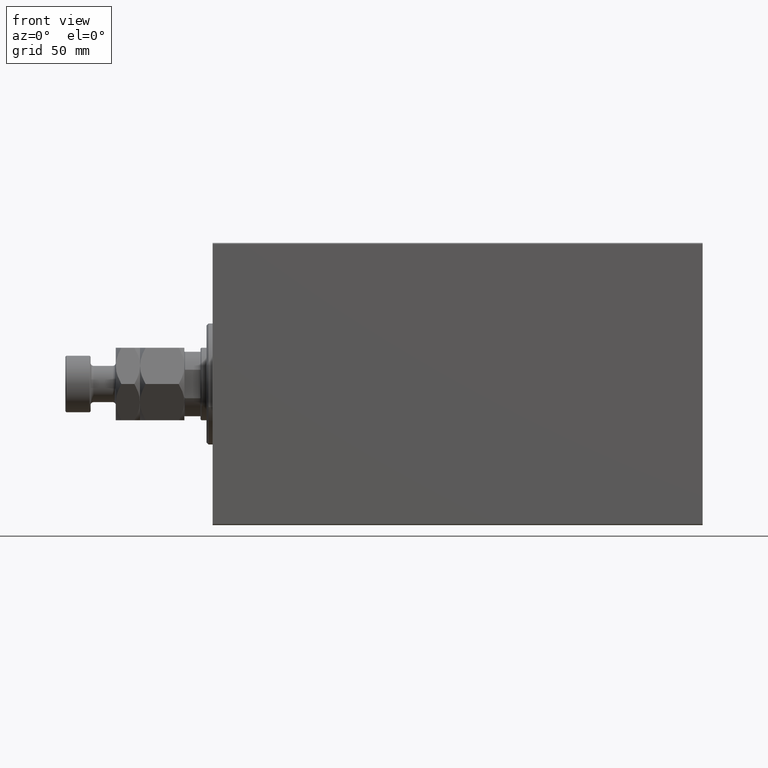
[diagram: clean part render]
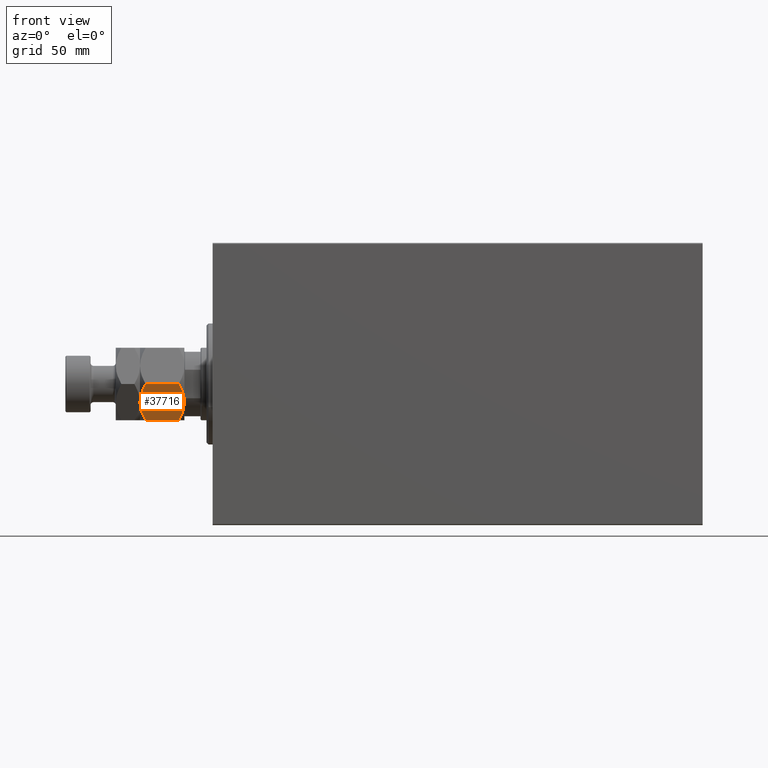
[diagram: same view with one face highlighted and labeled with its STEP entity id]
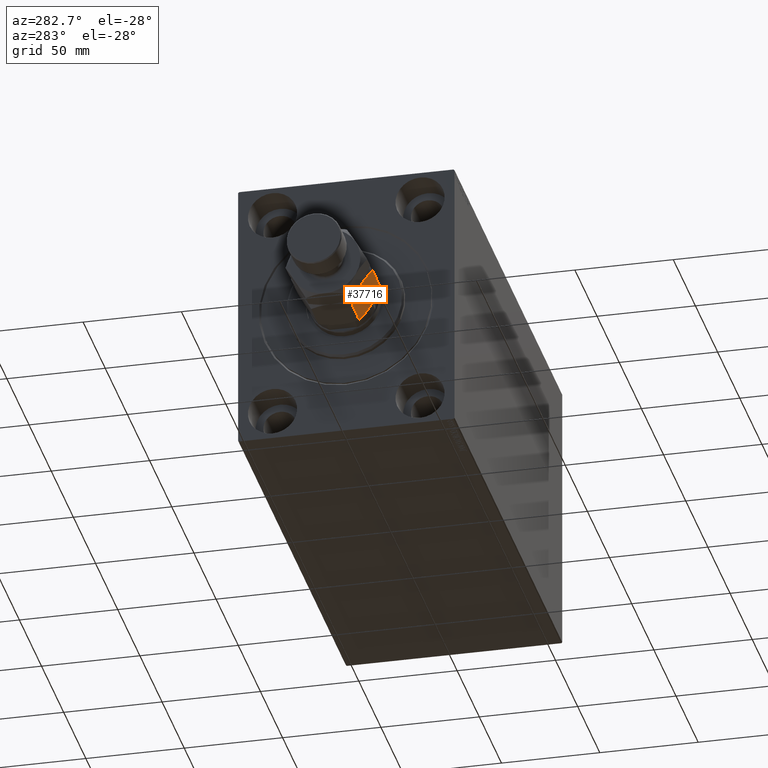
[diagram: same view with one face highlighted and labeled with its STEP entity id]
A machine part, front view. The second image highlights one B-rep face of the part: STEP entity #37716.
A second angle (auxiliary view) of the same face is appended — the face is thin or edge-on in the first view.
In plain terms, the highlighted planar face has unit normal (0, 0.866, 0.5).
Its self-contained STEP definition (entity closure, byte-faithful):
#805 = CARTESIAN_POINT ( 'NONE',  ( -8.673617379884035472E-16, -20.78460969082652454, 22.00000000000000000 ) ) ;
#1400 = ORIENTED_EDGE ( 'NONE', *, *, #30649, .F. ) ;
#2724 = CARTESIAN_POINT ( 'NONE',  ( -18.00000000000000000, -10.39230484541326582, 19.21539030917347901 ) ) ;
#2885 = B_SPLINE_CURVE_WITH_KNOTS ( 'NONE', 3,
 ( #13561, #24143, #24812, #21375, #17465, #45095 ),
 .UNSPECIFIED., .F., .F.,
 ( 4, 2, 4 ),
 ( 0.01077282027732747068, 0.01612137750481873466, 0.02146993473230999691 ),
 .UNSPECIFIED. ) ;
#2952 = CARTESIAN_POINT ( 'NONE',  ( -10.58425150785354241, -14.67378923359658316, 21.91305310988184374 ) ) ;
#3175 = EDGE_CURVE ( 'NONE', #4869, #11038, #2885, .T. ) ;
#4116 = CARTESIAN_POINT ( 'NONE',  ( -8.999999999999996447, -15.58845726811989607, 0.000000000000000000 ) ) ;
#4309 = DIRECTION ( 'NONE',  ( 0.4999999999999998335, 0.8660254037844387076, -0.000000000000000000 ) ) ;
#4869 = VERTEX_POINT ( 'NONE', #5469 ) ;
#5469 = CARTESIAN_POINT ( 'NONE',  ( -8.999999999999994671, -15.58845726811989252, 22.00000000000000000 ) ) ;
#7005 = B_SPLINE_CURVE_WITH_KNOTS ( 'NONE', 3,
 ( #4116, #32209, #25291, #39793, #43033, #36349 ),
 .UNSPECIFIED., .F., .F.,
 ( 4, 2, 4 ),
 ( 0.01077282027732746374, 0.01612137750481872772, 0.02146993473230999344 ),
 .UNSPECIFIED. ) ;
#7507 = ORIENTED_EDGE ( 'NONE', *, *, #14554, .F. ) ;
#8459 = EDGE_CURVE ( 'NONE', #21772, #27399, #7005, .T. ) ;
#9078 = AXIS2_PLACEMENT_3D ( 'NONE', #31720, #4309, #14222 ) ;
#10437 = CARTESIAN_POINT ( 'NONE',  ( -18.00000000000000000, -10.39230484541326582, 19.21539030917347901 ) ) ;
#10667 = CARTESIAN_POINT ( 'NONE',  ( -8.999999999999996447, -15.58845726811989607, 0.000000000000000000 ) ) ;
#11038 = VERTEX_POINT ( 'NONE', #43177 ) ;
#11270 = VERTEX_POINT ( 'NONE', #10437 ) ;
#13561 = CARTESIAN_POINT ( 'NONE',  ( -8.999999999999994671, -15.58845726811989252, 22.00000000000000000 ) ) ;
#14222 = DIRECTION ( 'NONE',  ( -0.8660254037844387076, 0.4999999999999998335, 0.000000000000000000 ) ) ;
#14554 = EDGE_CURVE ( 'NONE', #11270, #4869, #33546, .T. ) ;
#14726 = ORIENTED_EDGE ( 'NONE', *, *, #40458, .T. ) ;
#17013 = CARTESIAN_POINT ( 'NONE',  ( -12.14199022028319774, -13.77442836864821984, 21.65943689774472602 ) ) ;
#17465 = CARTESIAN_POINT ( 'NONE',  ( -1.409696000463988463, -19.97072132548310108, 20.02927867451694510 ) ) ;
#17676 = PLANE ( 'NONE',  #9078 ) ;
#20056 = ORIENTED_EDGE ( 'NONE', *, *, #8459, .F. ) ;
#20221 = CARTESIAN_POINT ( 'NONE',  ( -8.209538469370123437, -16.04483044561309768, 0.01733285647409000055 ) ) ;
#20894 = CARTESIAN_POINT ( 'NONE',  ( -7.415748492146452264, -16.50312530264320898, 0.08694689011815484592 ) ) ;
#21149 = CARTESIAN_POINT ( 'NONE',  ( -8.999999999999994671, -15.58845726811989252, 22.00000000000000000 ) ) ;
#21375 = CARTESIAN_POINT ( 'NONE',  ( -2.860715810337963294, -19.13297464765287614, 20.72742529849575277 ) ) ;
#21772 = VERTEX_POINT ( 'NONE', #10667 ) ;
#23086 = VECTOR ( 'NONE', #39490, 1000.000000000000000 ) ;
#23211 = EDGE_LOOP ( 'NONE', ( #1400, #24558, #31873, #7507, #14726, #20056 ) ) ;
#23888 = CARTESIAN_POINT ( 'NONE',  ( -8.999999999999996447, -15.58845726811989607, 0.000000000000000000 ) ) ;
#24115 = CARTESIAN_POINT ( 'NONE',  ( -7.023280245922045140, -16.72971695024925509, 0.1387225990985768986 ) ) ;
#24143 = CARTESIAN_POINT ( 'NONE',  ( -7.434539168300457135, -16.49227650070744033, 22.00000000000000000 ) ) ;
#24558 = ORIENTED_EDGE ( 'NONE', *, *, #38881, .F. ) ;
#24601 = CARTESIAN_POINT ( 'NONE',  ( -18.00000000000000000, -10.39230484541326582, 22.00000000000000000 ) ) ;
#24812 = CARTESIAN_POINT ( 'NONE',  ( -5.895697476400521886, -17.38072716576608912, 21.72360409287842131 ) ) ;
#25291 = CARTESIAN_POINT ( 'NONE',  ( -12.10430252359947723, -13.79618737047370303, 0.2763959071215840724 ) ) ;
#25910 = B_SPLINE_CURVE_WITH_KNOTS ( 'NONE', 3,
 ( #30800, #34479, #45291, #41611, #41381, #24115, #20894, #20221, #44831, #23888 ),
 .UNSPECIFIED., .F., .F.,
 ( 4, 2, 2, 2, 4 ),
 ( 2.544307986815391393E-07, 0.005386537354063073400, 0.008079678815695269870, 0.009426249546511366803, 0.01077282027732746374 ),
 .UNSPECIFIED. ) ;
#27399 = VERTEX_POINT ( 'NONE', #35479 ) ;
#27566 = CARTESIAN_POINT ( 'NONE',  ( -5.711424626294094742E-16, -20.78460969082652454, 2.784609690826514772 ) ) ;
#27594 = CARTESIAN_POINT ( 'NONE',  ( -12.90267270303527525, -13.33524813246347129, 21.46291444417098049 ) ) ;
#30649 = EDGE_CURVE ( 'NONE', #42648, #21772, #25910, .T. ) ;
#30800 = CARTESIAN_POINT ( 'NONE',  ( -5.711424626294094742E-16, -20.78460969082652454, 2.784609690826514772 ) ) ;
#31514 = CARTESIAN_POINT ( 'NONE',  ( -16.58866960374795241, -11.20713682960488633, 20.03022229336509596 ) ) ;
#31720 = CARTESIAN_POINT ( 'NONE',  ( -18.00000000000000000, -10.39230484541326582, 22.00000000000000000 ) ) ;
#31873 = ORIENTED_EDGE ( 'NONE', *, *, #3175, .F. ) ;
#32209 = CARTESIAN_POINT ( 'NONE',  ( -10.56546083169953576, -14.68463803553235181, 8.233160247311796338E-16 ) ) ;
#32362 = LINE ( 'NONE', #805, #23086 ) ;
#33546 = B_SPLINE_CURVE_WITH_KNOTS ( 'NONE', 3,
 ( #2724, #31514, #35186, #27594, #17013, #38861, #2952, #38182, #34733, #21149 ),
 .UNSPECIFIED., .F., .F.,
 ( 4, 2, 2, 2, 4 ),
 ( 2.544307986796311447E-07, 0.005386537354063076002, 0.008079678815695275074, 0.009426249546511373742, 0.01077282027732747068 ),
 .UNSPECIFIED. ) ;
#34479 = CARTESIAN_POINT ( 'NONE',  ( -1.411330396252045816, -19.96977770663490759, 1.969777706634897152 ) ) ;
#34733 = CARTESIAN_POINT ( 'NONE',  ( -9.394125676616230436, -15.36090870263097230, 22.00000000000000000 ) ) ;
#35186 = CARTESIAN_POINT ( 'NONE',  ( -15.14539811114618573, -12.04041001437222569, 20.72261692211012729 ) ) ;
#35479 = CARTESIAN_POINT ( 'NONE',  ( -18.00000000000000000, -10.39230484541326582, 2.784609690826517436 ) ) ;
#36349 = CARTESIAN_POINT ( 'NONE',  ( -18.00000000000000000, -10.39230484541326582, 2.784609690826517436 ) ) ;
#37716 = ADVANCED_FACE ( 'NONE', ( #39313 ), #17676, .F. ) ;
#38182 = CARTESIAN_POINT ( 'NONE',  ( -9.790461530629873010, -15.13208409062669624, 21.98266714352591222 ) ) ;
#38861 = CARTESIAN_POINT ( 'NONE',  ( -10.97671975407795131, -14.44719758599054060, 21.86127740090141458 ) ) ;
#38881 = EDGE_CURVE ( 'NONE', #11038, #42648, #32362, .T. ) ;
#39313 = FACE_OUTER_BOUND ( 'NONE', #23211, .T. ) ;
#39490 = DIRECTION ( 'NONE',  ( -0.000000000000000000, -0.000000000000000000, -1.000000000000000000 ) ) ;
#39793 = CARTESIAN_POINT ( 'NONE',  ( -15.13928418966203004, -12.04393988858690712, 1.272574701504241901 ) ) ;
#40458 = EDGE_CURVE ( 'NONE', #11270, #27399, #41422, .T. ) ;
#41381 = CARTESIAN_POINT ( 'NONE',  ( -5.858009779716799592, -17.40248616759157230, 0.3405631022552689235 ) ) ;
#41422 = LINE ( 'NONE', #24601, #45165 ) ;
#41611 = CARTESIAN_POINT ( 'NONE',  ( -5.097327296964719423, -17.84166640377631197, 0.5370855558290080767 ) ) ;
#42329 = DIRECTION ( 'NONE',  ( -0.000000000000000000, -0.000000000000000000, -1.000000000000000000 ) ) ;
#42648 = VERTEX_POINT ( 'NONE', #27566 ) ;
#43033 = CARTESIAN_POINT ( 'NONE',  ( -16.59030399953601176, -11.20619321075668928, 1.970721325483051567 ) ) ;
#43177 = CARTESIAN_POINT ( 'NONE',  ( -6.333703707815436362E-16, -20.78460969082652454, 19.21539030917348256 ) ) ;
#44831 = CARTESIAN_POINT ( 'NONE',  ( -8.605874323383764235, -15.81600583360881807, 9.080193194566099635E-16 ) ) ;
#45095 = CARTESIAN_POINT ( 'NONE',  ( -6.333703707815436362E-16, -20.78460969082652454, 19.21539030917348256 ) ) ;
#45165 = VECTOR ( 'NONE', #42329, 1000.000000000000000 ) ;
#45291 = CARTESIAN_POINT ( 'NONE',  ( -2.854601888853810721, -19.13650452186755757, 1.277383077889868046 ) ) ;